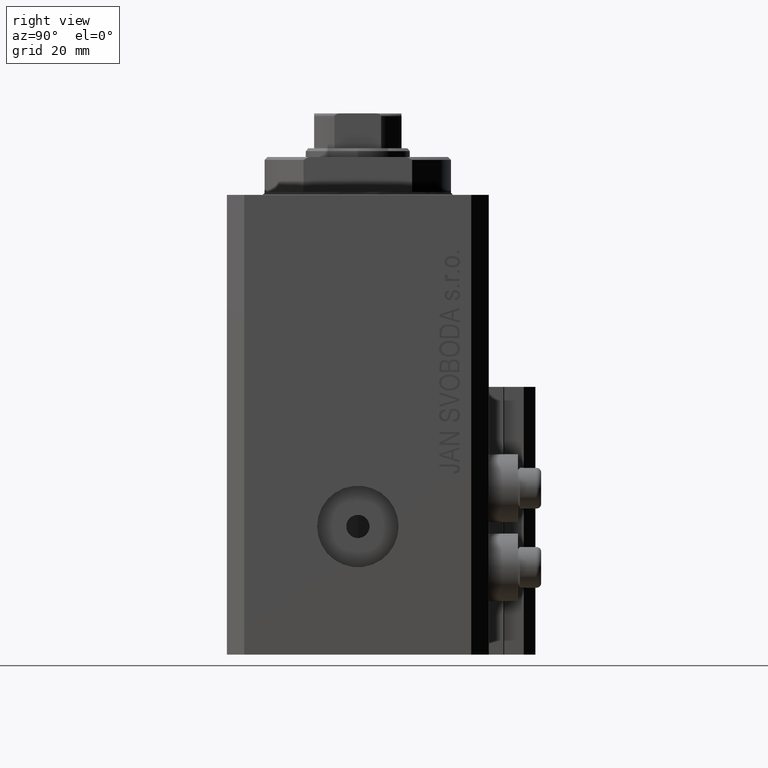
[diagram: clean part render]
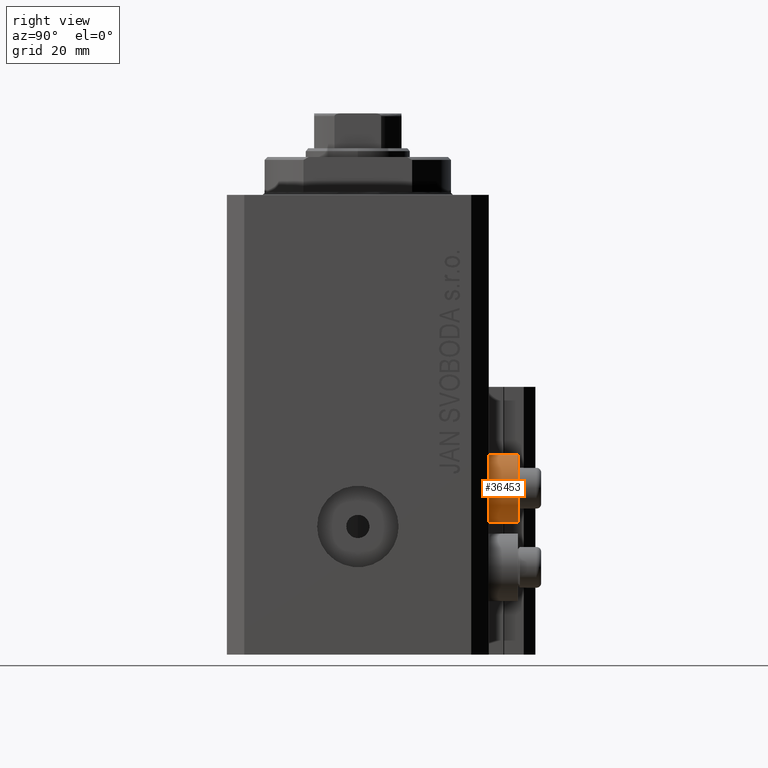
[diagram: same view with one face highlighted and labeled with its STEP entity id]
A machine part, right view. The second image highlights one B-rep face of the part: STEP entity #36453.
In plain terms, the highlighted cylindrical surface (edge-blend (fillet) strip) has radius 5.8 mm, axis along (0, 1, 0).
Its self-contained STEP definition (entity closure, byte-faithful):
#3349 = DIRECTION ( 'NONE',  ( 0.000000000000000000, 0.000000000000000000, 1.000000000000000000 ) ) ;
#5991 = DIRECTION ( 'NONE',  ( 0.000000000000000000, 1.000000000000000000, 0.000000000000000000 ) ) ;
#6119 = AXIS2_PLACEMENT_3D ( 'NONE', #11219, #28870, #3349 ) ;
#6236 = CARTESIAN_POINT ( 'NONE',  ( 18.00000000000000355, 22.49999999999951328, -44.60000000000000142 ) ) ;
#6394 = DIRECTION ( 'NONE',  ( 0.000000000000000000, 0.000000000000000000, 1.000000000000000000 ) ) ;
#7039 = VECTOR ( 'NONE', #34111, 1000.000000000000000 ) ;
#7062 = EDGE_CURVE ( 'NONE', #25645, #42937, #38105, .T. ) ;
#7360 = VECTOR ( 'NONE', #40400, 1000.000000000000000 ) ;
#9041 = EDGE_CURVE ( 'NONE', #32843, #10662, #36859, .T. ) ;
#9296 = LINE ( 'NONE', #27193, #7039 ) ;
#9970 = CARTESIAN_POINT ( 'NONE',  ( 18.00000000000000355, 22.49999999999951328, -50.39999999999999858 ) ) ;
#10662 = VERTEX_POINT ( 'NONE', #6236 ) ;
#11219 = CARTESIAN_POINT ( 'NONE',  ( 18.00000000000000355, 27.49999999996051514, -50.39999999999999858 ) ) ;
#13531 = EDGE_CURVE ( 'NONE', #10662, #42937, #9296, .T. ) ;
#13629 = FACE_OUTER_BOUND ( 'NONE', #36137, .T. ) ;
#20064 = ORIENTED_EDGE ( 'NONE', *, *, #13531, .F. ) ;
#20770 = DIRECTION ( 'NONE',  ( 0.000000000000000000, 0.000000000000000000, 1.000000000000000000 ) ) ;
#21921 = CARTESIAN_POINT ( 'NONE',  ( 18.00000000000000355, 22.49999999999951328, -56.20000000000000284 ) ) ;
#22276 = CARTESIAN_POINT ( 'NONE',  ( 18.00000000000000355, 27.49999999996051514, -56.20000000000000284 ) ) ;
#22372 = AXIS2_PLACEMENT_3D ( 'NONE', #9970, #23806, #6394 ) ;
#22996 = CARTESIAN_POINT ( 'NONE',  ( 18.00000000000000355, 27.49999999996051514, -44.60000000000000142 ) ) ;
#23806 = DIRECTION ( 'NONE',  ( -0.000000000000000000, -1.000000000000000000, -0.000000000000000000 ) ) ;
#24591 = CARTESIAN_POINT ( 'NONE',  ( 18.00000000000000355, 27.49999999996051514, -50.39999999999999858 ) ) ;
#25385 = LINE ( 'NONE', #22276, #7360 ) ;
#25645 = VERTEX_POINT ( 'NONE', #42949 ) ;
#26141 = AXIS2_PLACEMENT_3D ( 'NONE', #24591, #5991, #20770 ) ;
#27193 = CARTESIAN_POINT ( 'NONE',  ( 18.00000000000000355, 27.49999999996051514, -44.60000000000000142 ) ) ;
#28870 = DIRECTION ( 'NONE',  ( -0.000000000000000000, -1.000000000000000000, -0.000000000000000000 ) ) ;
#31541 = ORIENTED_EDGE ( 'NONE', *, *, #44748, .T. ) ;
#32843 = VERTEX_POINT ( 'NONE', #21921 ) ;
#34111 = DIRECTION ( 'NONE',  ( 0.000000000000000000, 1.000000000000000000, 0.000000000000000000 ) ) ;
#36137 = EDGE_LOOP ( 'NONE', ( #39049, #31541, #40751, #20064 ) ) ;
#36453 = ADVANCED_FACE ( 'NONE', ( #13629 ), #46083, .T. ) ;
#36859 = CIRCLE ( 'NONE', #22372, 5.799999999999999822 ) ;
#38105 = CIRCLE ( 'NONE', #6119, 5.799999999999999822 ) ;
#39049 = ORIENTED_EDGE ( 'NONE', *, *, #9041, .F. ) ;
#40400 = DIRECTION ( 'NONE',  ( 0.000000000000000000, 1.000000000000000000, 0.000000000000000000 ) ) ;
#40751 = ORIENTED_EDGE ( 'NONE', *, *, #7062, .T. ) ;
#42937 = VERTEX_POINT ( 'NONE', #22996 ) ;
#42949 = CARTESIAN_POINT ( 'NONE',  ( 18.00000000000000355, 27.49999999996051514, -56.20000000000000284 ) ) ;
#44748 = EDGE_CURVE ( 'NONE', #32843, #25645, #25385, .T. ) ;
#46083 = CYLINDRICAL_SURFACE ( 'NONE', #26141, 5.799999999999999822 ) ;